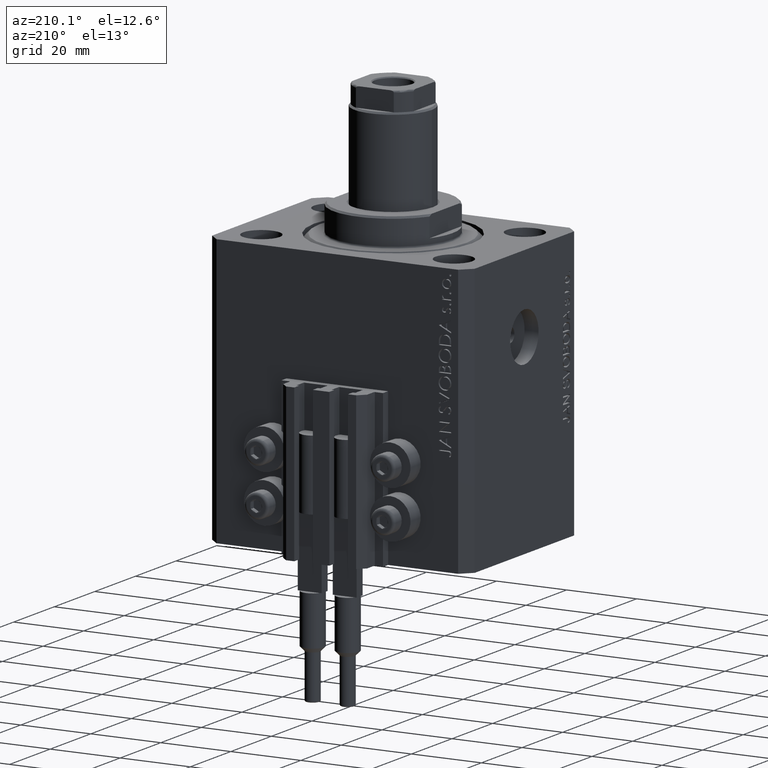
[diagram: clean part render]
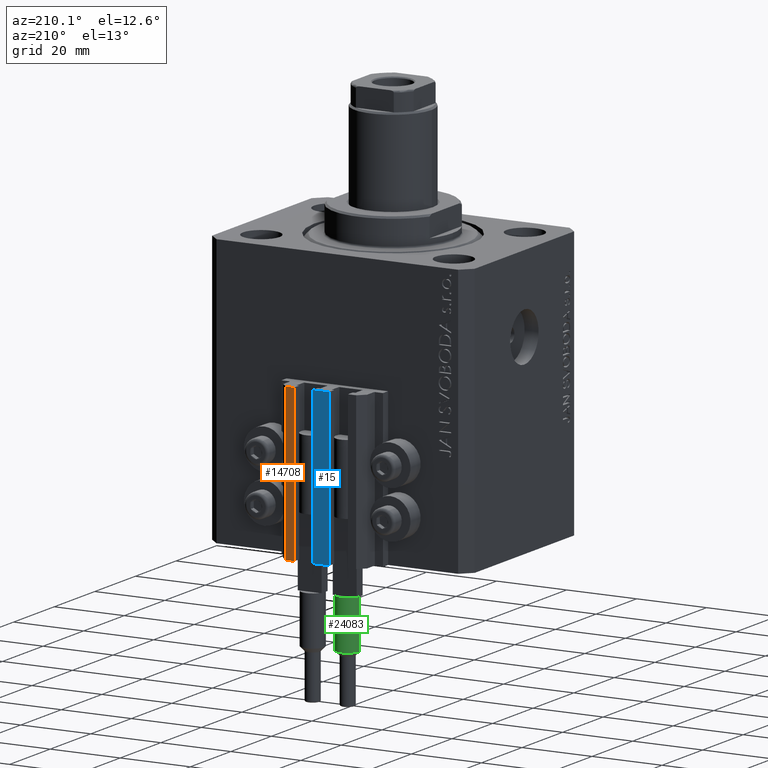
[diagram: same view with three faces highlighted in distinct colors, each labeled with its STEP entity id]
A machine part, auxiliary view with three faces highlighted in distinct colors.
Their STEP definitions:

[orange] entity #14708 — the highlighted planar face has unit normal (0, 1, 0).
#1205 = DIRECTION ( 'NONE',  ( -1.000000000000000000, 0.000000000000000000, 0.000000000000000000 ) ) ;
#5449 = FACE_OUTER_BOUND ( 'NONE', #29900, .T. ) ;
#6181 = CARTESIAN_POINT ( 'NONE',  ( 9.999999999999998224, 35.50000000000001421, -77.00000000000000000 ) ) ;
#6218 = VERTEX_POINT ( 'NONE', #27138 ) ;
#6382 = LINE ( 'NONE', #36187, #29722 ) ;
#8287 = LINE ( 'NONE', #11977, #46094 ) ;
#11852 = VECTOR ( 'NONE', #24997, 1000.000000000000000 ) ;
#11977 = CARTESIAN_POINT ( 'NONE',  ( 9.999999999999998224, 35.50000000000001421, -77.00000000000000000 ) ) ;
#12408 = AXIS2_PLACEMENT_3D ( 'NONE', #6181, #31835, #42834 ) ;
#14708 = ADVANCED_FACE ( 'NONE', ( #5449 ), #43814, .T. ) ;
#17591 = ORIENTED_EDGE ( 'NONE', *, *, #18588, .T. ) ;
#18588 = EDGE_CURVE ( 'NONE', #24724, #6218, #39140, .T. ) ;
#19548 = VECTOR ( 'NONE', #27671, 1000.000000000000000 ) ;
#22653 = CARTESIAN_POINT ( 'NONE',  ( 7.649999999999998579, 35.50000000000001421, -77.00000000000000000 ) ) ;
#24008 = ORIENTED_EDGE ( 'NONE', *, *, #27044, .F. ) ;
#24724 = VERTEX_POINT ( 'NONE', #22653 ) ;
#24957 = CARTESIAN_POINT ( 'NONE',  ( 7.649999999999998579, 35.50000000000001421, -77.00000000000000000 ) ) ;
#24997 = DIRECTION ( 'NONE',  ( -1.000000000000000000, 0.000000000000000000, 0.000000000000000000 ) ) ;
#27044 = EDGE_CURVE ( 'NONE', #33922, #39205, #6382, .T. ) ;
#27138 = CARTESIAN_POINT ( 'NONE',  ( 7.649999999999998579, 35.50000000000001421, -33.00000000000000000 ) ) ;
#27460 = EDGE_CURVE ( 'NONE', #33922, #24724, #8287, .T. ) ;
#27671 = DIRECTION ( 'NONE',  ( 0.000000000000000000, 0.000000000000000000, 1.000000000000000000 ) ) ;
#29722 = VECTOR ( 'NONE', #47187, 1000.000000000000000 ) ;
#29900 = EDGE_LOOP ( 'NONE', ( #44246, #24008, #36062, #17591 ) ) ;
#30015 = EDGE_CURVE ( 'NONE', #39205, #6218, #39894, .T. ) ;
#31835 = DIRECTION ( 'NONE',  ( 0.000000000000000000, 1.000000000000000000, -0.000000000000000000 ) ) ;
#33922 = VERTEX_POINT ( 'NONE', #47843 ) ;
#36062 = ORIENTED_EDGE ( 'NONE', *, *, #27460, .T. ) ;
#36187 = CARTESIAN_POINT ( 'NONE',  ( 9.999999999999998224, 35.50000000000001421, -77.00000000000000000 ) ) ;
#39140 = LINE ( 'NONE', #24957, #19548 ) ;
#39205 = VERTEX_POINT ( 'NONE', #46554 ) ;
#39645 = CARTESIAN_POINT ( 'NONE',  ( 9.999999999999998224, 35.50000000000001421, -33.00000000000000000 ) ) ;
#39894 = LINE ( 'NONE', #39645, #11852 ) ;
#42834 = DIRECTION ( 'NONE',  ( 0.000000000000000000, 0.000000000000000000, 1.000000000000000000 ) ) ;
#43814 = PLANE ( 'NONE',  #12408 ) ;
#44246 = ORIENTED_EDGE ( 'NONE', *, *, #30015, .F. ) ;
#46094 = VECTOR ( 'NONE', #1205, 1000.000000000000000 ) ;
#46554 = CARTESIAN_POINT ( 'NONE',  ( 9.999999999999998224, 35.50000000000001421, -33.00000000000000000 ) ) ;
#47187 = DIRECTION ( 'NONE',  ( 0.000000000000000000, 0.000000000000000000, 1.000000000000000000 ) ) ;
#47843 = CARTESIAN_POINT ( 'NONE',  ( 9.999999999999998224, 35.50000000000001421, -77.00000000000000000 ) ) ;

[blue] entity #15 — the highlighted planar face has unit normal (0, -1, 0).
#15 = ADVANCED_FACE ( 'NONE', ( #37886 ), #4402, .F. ) ;
#1212 = ORIENTED_EDGE ( 'NONE', *, *, #21119, .T. ) ;
#1946 = AXIS2_PLACEMENT_3D ( 'NONE', #41776, #23216, #19324 ) ;
#2422 = ORIENTED_EDGE ( 'NONE', *, *, #45880, .F. ) ;
#2998 = CARTESIAN_POINT ( 'NONE',  ( -2.350000000000003642, 35.50000000000001421, -77.00000000000000000 ) ) ;
#3673 = ORIENTED_EDGE ( 'NONE', *, *, #48257, .F. ) ;
#4074 = CARTESIAN_POINT ( 'NONE',  ( -2.350000000000003642, 35.50000000000001421, -33.00000000000000000 ) ) ;
#4402 = PLANE ( 'NONE',  #1946 ) ;
#4515 = EDGE_LOOP ( 'NONE', ( #1212, #3673, #2422, #44017 ) ) ;
#5489 = VERTEX_POINT ( 'NONE', #4074 ) ;
#5987 = EDGE_CURVE ( 'NONE', #30074, #5489, #34533, .T. ) ;
#7664 = VECTOR ( 'NONE', #24269, 1000.000000000000000 ) ;
#14697 = LINE ( 'NONE', #34450, #45468 ) ;
#19324 = DIRECTION ( 'NONE',  ( 0.000000000000000000, -0.000000000000000000, -1.000000000000000000 ) ) ;
#19886 = CARTESIAN_POINT ( 'NONE',  ( 2.349999999999999645, 35.50000000000001421, -77.00000000000000000 ) ) ;
#20108 = DIRECTION ( 'NONE',  ( 0.000000000000000000, 0.000000000000000000, 1.000000000000000000 ) ) ;
#21119 = EDGE_CURVE ( 'NONE', #5489, #26068, #14697, .T. ) ;
#22310 = CARTESIAN_POINT ( 'NONE',  ( 2.349999999999999645, 35.50000000000001421, -33.00000000000000000 ) ) ;
#23216 = DIRECTION ( 'NONE',  ( 0.000000000000000000, -1.000000000000000000, 0.000000000000000000 ) ) ;
#23786 = CARTESIAN_POINT ( 'NONE',  ( 2.349999999999999645, 35.50000000000001421, -77.00000000000000000 ) ) ;
#24269 = DIRECTION ( 'NONE',  ( 1.000000000000000000, 0.000000000000000000, 0.000000000000000000 ) ) ;
#24422 = VECTOR ( 'NONE', #20108, 1000.000000000000000 ) ;
#26068 = VERTEX_POINT ( 'NONE', #22310 ) ;
#28670 = LINE ( 'NONE', #43319, #7664 ) ;
#30074 = VERTEX_POINT ( 'NONE', #2998 ) ;
#33976 = DIRECTION ( 'NONE',  ( 1.000000000000000000, 0.000000000000000000, 0.000000000000000000 ) ) ;
#34270 = VECTOR ( 'NONE', #37737, 1000.000000000000000 ) ;
#34450 = CARTESIAN_POINT ( 'NONE',  ( -2.350000000000003642, 35.50000000000001421, -33.00000000000000000 ) ) ;
#34533 = LINE ( 'NONE', #42090, #24422 ) ;
#37737 = DIRECTION ( 'NONE',  ( 0.000000000000000000, 0.000000000000000000, 1.000000000000000000 ) ) ;
#37886 = FACE_OUTER_BOUND ( 'NONE', #4515, .T. ) ;
#39468 = VERTEX_POINT ( 'NONE', #23786 ) ;
#41776 = CARTESIAN_POINT ( 'NONE',  ( -2.350000000000003642, 35.50000000000001421, -77.00000000000000000 ) ) ;
#42090 = CARTESIAN_POINT ( 'NONE',  ( -2.350000000000003642, 35.50000000000001421, -77.00000000000000000 ) ) ;
#43319 = CARTESIAN_POINT ( 'NONE',  ( -2.350000000000003642, 35.50000000000001421, -77.00000000000000000 ) ) ;
#44017 = ORIENTED_EDGE ( 'NONE', *, *, #5987, .T. ) ;
#45468 = VECTOR ( 'NONE', #33976, 1000.000000000000000 ) ;
#45547 = LINE ( 'NONE', #19886, #34270 ) ;
#45880 = EDGE_CURVE ( 'NONE', #30074, #39468, #28670, .T. ) ;
#48257 = EDGE_CURVE ( 'NONE', #39468, #26068, #45547, .T. ) ;

[green] entity #24083 — the highlighted cylindrical surface (edge-blend (fillet) strip) has radius 3.25 mm, axis along (-0, -0, 1).
#985 = VERTEX_POINT ( 'NONE', #15853 ) ;
#1990 = CARTESIAN_POINT ( 'NONE',  ( 3.250000000000000444, 3.980102097228898231E-16, 53.99999999999998579 ) ) ;
#4522 = AXIS2_PLACEMENT_3D ( 'NONE', #47118, #28325, #9957 ) ;
#4966 = ORIENTED_EDGE ( 'NONE', *, *, #8667, .T. ) ;
#5132 = DIRECTION ( 'NONE',  ( -0.000000000000000000, -0.000000000000000000, -1.000000000000000000 ) ) ;
#5172 = CARTESIAN_POINT ( 'NONE',  ( -2.883140648667699146, -1.500000000000000000, 40.00000000000000000 ) ) ;
#5564 = CARTESIAN_POINT ( 'NONE',  ( 0.000000000000000000, 0.000000000000000000, 40.00000000000000000 ) ) ;
#6407 = AXIS2_PLACEMENT_3D ( 'NONE', #38923, #9607, #24521 ) ;
#7654 = VERTEX_POINT ( 'NONE', #5172 ) ;
#8631 = ORIENTED_EDGE ( 'NONE', *, *, #29905, .T. ) ;
#8667 = EDGE_CURVE ( 'NONE', #7654, #46139, #34231, .T. ) ;
#8968 = CARTESIAN_POINT ( 'NONE',  ( 2.883140648667699146, -1.500000000000000000, 40.00000000000000000 ) ) ;
#9607 = DIRECTION ( 'NONE',  ( 0.000000000000000000, 0.000000000000000000, 1.000000000000000000 ) ) ;
#9957 = DIRECTION ( 'NONE',  ( 1.000000000000000000, 0.000000000000000000, 0.000000000000000000 ) ) ;
#10744 = CARTESIAN_POINT ( 'NONE',  ( 3.250000000000000444, 3.980102097228898231E-16, 56.00000000000000000 ) ) ;
#13168 = AXIS2_PLACEMENT_3D ( 'NONE', #42135, #37999, #41668 ) ;
#13661 = VERTEX_POINT ( 'NONE', #39888 ) ;
#14670 = AXIS2_PLACEMENT_3D ( 'NONE', #5564, #41742, #16333 ) ;
#15853 = CARTESIAN_POINT ( 'NONE',  ( -3.250000000000000444, 0.000000000000000000, 53.99999999999998579 ) ) ;
#16333 = DIRECTION ( 'NONE',  ( 1.000000000000000000, 0.000000000000000000, 0.000000000000000000 ) ) ;
#16486 = ORIENTED_EDGE ( 'NONE', *, *, #41408, .T. ) ;
#16495 = VECTOR ( 'NONE', #5132, 1000.000000000000000 ) ;
#18045 = AXIS2_PLACEMENT_3D ( 'NONE', #43299, #21552, #32779 ) ;
#19074 = LINE ( 'NONE', #10744, #43874 ) ;
#21552 = DIRECTION ( 'NONE',  ( -0.000000000000000000, -0.000000000000000000, -1.000000000000000000 ) ) ;
#21852 = VERTEX_POINT ( 'NONE', #1990 ) ;
#24083 = ADVANCED_FACE ( 'NONE', ( #32056 ), #29140, .T. ) ;
#24521 = DIRECTION ( 'NONE',  ( 1.000000000000000000, 0.000000000000000000, 0.000000000000000000 ) ) ;
#25021 = EDGE_CURVE ( 'NONE', #985, #35504, #43005, .T. ) ;
#25562 = CIRCLE ( 'NONE', #14670, 3.250000000000000444 ) ;
#26211 = ORIENTED_EDGE ( 'NONE', *, *, #47739, .T. ) ;
#27164 = CIRCLE ( 'NONE', #4522, 3.250000000000000444 ) ;
#27780 = ORIENTED_EDGE ( 'NONE', *, *, #38630, .F. ) ;
#28325 = DIRECTION ( 'NONE',  ( 0.000000000000000000, 0.000000000000000000, -1.000000000000000000 ) ) ;
#29140 = CYLINDRICAL_SURFACE ( 'NONE', #18045, 3.250000000000000444 ) ;
#29905 = EDGE_CURVE ( 'NONE', #46139, #13661, #32150, .T. ) ;
#30033 = ORIENTED_EDGE ( 'NONE', *, *, #25021, .T. ) ;
#30591 = CARTESIAN_POINT ( 'NONE',  ( -3.250000000000000444, 0.000000000000000000, 40.00000000000000000 ) ) ;
#31048 = CARTESIAN_POINT ( 'NONE',  ( -3.250000000000000444, 0.000000000000000000, 56.00000000000000000 ) ) ;
#32056 = FACE_OUTER_BOUND ( 'NONE', #40493, .T. ) ;
#32150 = CIRCLE ( 'NONE', #6407, 3.250000000000000444 ) ;
#32779 = DIRECTION ( 'NONE',  ( -1.000000000000000000, 0.000000000000000000, 0.000000000000000000 ) ) ;
#34231 = CIRCLE ( 'NONE', #13168, 3.250000000000000444 ) ;
#35504 = VERTEX_POINT ( 'NONE', #30591 ) ;
#36896 = DIRECTION ( 'NONE',  ( -0.000000000000000000, -0.000000000000000000, -1.000000000000000000 ) ) ;
#37999 = DIRECTION ( 'NONE',  ( 0.000000000000000000, 0.000000000000000000, 1.000000000000000000 ) ) ;
#38630 = EDGE_CURVE ( 'NONE', #21852, #13661, #19074, .T. ) ;
#38923 = CARTESIAN_POINT ( 'NONE',  ( 0.000000000000000000, 0.000000000000000000, 40.00000000000000000 ) ) ;
#39888 = CARTESIAN_POINT ( 'NONE',  ( 3.250000000000000444, 3.980102097228898231E-16, 40.00000000000000000 ) ) ;
#40493 = EDGE_LOOP ( 'NONE', ( #27780, #16486, #30033, #26211, #4966, #8631 ) ) ;
#41408 = EDGE_CURVE ( 'NONE', #21852, #985, #27164, .T. ) ;
#41668 = DIRECTION ( 'NONE',  ( 1.000000000000000000, 0.000000000000000000, 0.000000000000000000 ) ) ;
#41742 = DIRECTION ( 'NONE',  ( 0.000000000000000000, 0.000000000000000000, 1.000000000000000000 ) ) ;
#42135 = CARTESIAN_POINT ( 'NONE',  ( 0.000000000000000000, 0.000000000000000000, 40.00000000000000000 ) ) ;
#43005 = LINE ( 'NONE', #31048, #16495 ) ;
#43299 = CARTESIAN_POINT ( 'NONE',  ( 0.000000000000000000, 0.000000000000000000, 56.00000000000000000 ) ) ;
#43874 = VECTOR ( 'NONE', #36896, 1000.000000000000000 ) ;
#46139 = VERTEX_POINT ( 'NONE', #8968 ) ;
#47118 = CARTESIAN_POINT ( 'NONE',  ( 0.000000000000000000, 0.000000000000000000, 53.99999999999998579 ) ) ;
#47739 = EDGE_CURVE ( 'NONE', #35504, #7654, #25562, .T. ) ;